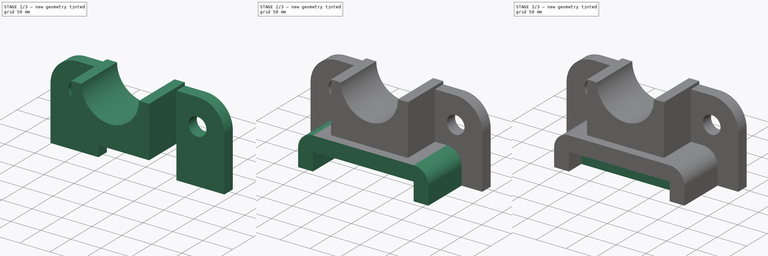
[diagram: build sequence overview — one tinted view per stage of 3, left to right]
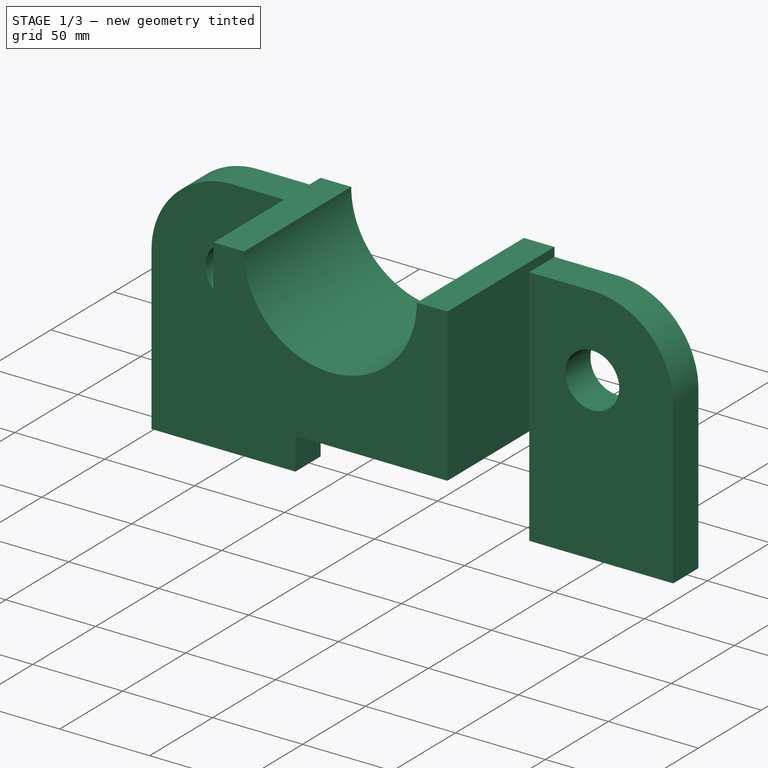
[diagram: stage 1 of 3 — iso view after this stage's code; geometry added in this stage tinted green]
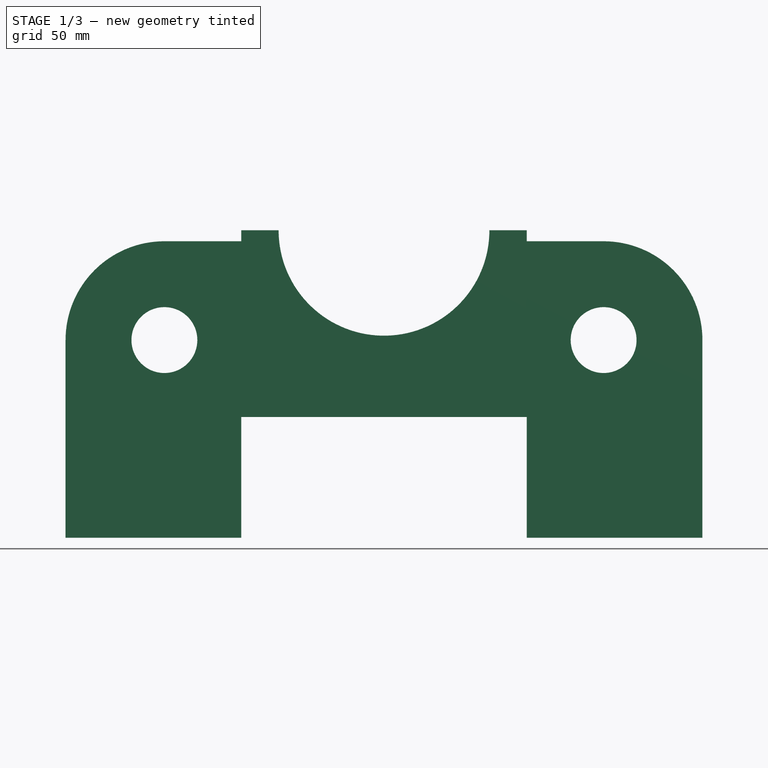
[diagram: stage 1 of 3 — front view after this stage's code; geometry added in this stage tinted green]
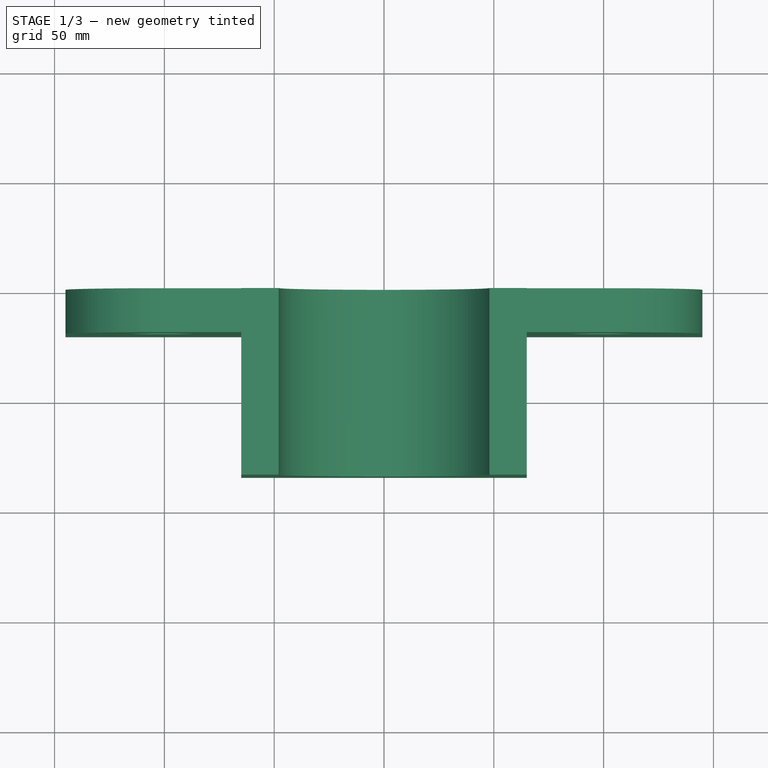
[diagram: stage 1 of 3 — top view after this stage's code; geometry added in this stage tinted green]
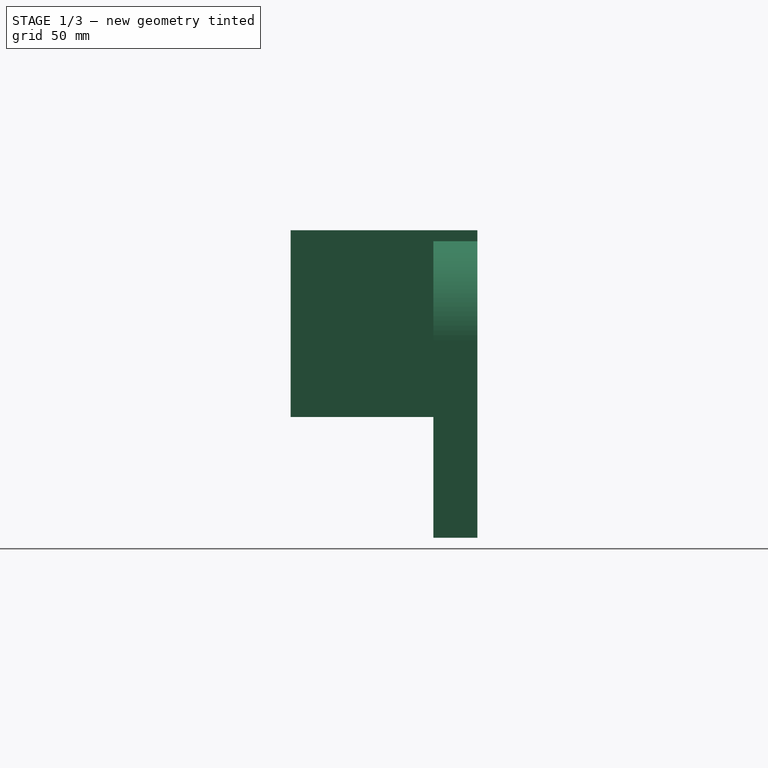
[diagram: stage 1 of 3 — right view after this stage's code; geometry added in this stage tinted green]
FCSTD DOCUMENT  (FreeCAD 0.16R)
Label: Ejer final 18
License: All rights reserved
LicenseURL: http://en.wikipedia.org/wiki/All_rights_reserved
objects: Sketcher::SketchObject×4, PartDesign::Pad×4, Part::MultiFuse×1
note: 13 computed .brp shape members not serialized (recipe doc carries the construction recipe); baked Part::Feature solids carry a one-line shape summary decoded from their .brp

FEATURE [Sketcher::SketchObject] Sketch002
  Placement = pos=(0,0,0) rot=(-1,0,0;4.71239rad)
  sketch-geometry (6):
    g0: LineSegment StartX=-48 StartY=140 StartZ=0 EndX=-65 EndY=140 EndZ=0
    g1: LineSegment StartX=-65 StartY=140 StartZ=0 EndX=-65 EndY=55 EndZ=0
    g2: LineSegment StartX=-65 StartY=55 StartZ=0 EndX=65 EndY=55 EndZ=0
    g3: LineSegment StartX=65 StartY=55 StartZ=0 EndX=65 EndY=140 EndZ=0
    g4: LineSegment StartX=65 StartY=140 StartZ=0 EndX=48 EndY=140 EndZ=0
    g5: ArcOfCircle CenterX=0 CenterY=140 CenterZ=0 NormalX=0 NormalY=0 NormalZ=1 Radius=48 StartAngle=3.14159 EndAngle=6.28319
  constraints (19):
    c: Horizontal(g0)
    c: Coincident(g0,g1)
    c: Vertical(g1)
    c: Coincident(g1,g2)
    c: Horizontal(g2)
    c: Coincident(g2,g3)
    c: Vertical(g3)
    c: Coincident(g3,g4)
    c: DistanceX(g2,g2) = 130
    c: DistanceY(g3,g3) = 85
    c: DistanceY(g1,g1) = 85
    c: DistanceY(g-1,g2) = 55
    c: Symmetric(g1,g2,g-2)
    c: PointOnObject(g5,g-2)
    c: Coincident(g5,g4)
    c: DistanceY(g-1,g5) = 140
    c: Coincident(g5,g0)
    c: Horizontal(g4)
    c: DistanceX(g0,g0) = 17
FEATURE [PartDesign::Pad] Pad002
  Length = 85
  Length2 = 100
  Placement = pos=(0,0,0) rot=(-1,0,0;4.71239rad)
  Sketch = -> Sketch002
  Type = 0
FEATURE [Sketcher::SketchObject] Sketch003
  Placement = pos=(0,0,0) rot=(-1,0,0;4.71239rad)
  sketch-geometry (12):
    g0: LineSegment StartX=65 StartY=0 StartZ=0 EndX=145 EndY=0 EndZ=0
    g1: LineSegment StartX=145 StartY=0 StartZ=0 EndX=145 EndY=90 EndZ=0
    g2: LineSegment StartX=100 StartY=135 StartZ=0 EndX=65 EndY=135 EndZ=0
    g3: LineSegment StartX=65 StartY=135 StartZ=0 EndX=65 EndY=0 EndZ=0
    g4: LineSegment StartX=-65 StartY=0 StartZ=0 EndX=-145 EndY=0 EndZ=0
    g5: LineSegment StartX=-145 StartY=0 StartZ=0 EndX=-145 EndY=90 EndZ=0
    g6: LineSegment StartX=-100 StartY=135 StartZ=0 EndX=-65 EndY=135 EndZ=0
    g7: LineSegment StartX=-65 StartY=135 StartZ=0 EndX=-65 EndY=0 EndZ=0
    g8: ArcOfCircle CenterX=-100 CenterY=90 CenterZ=0 NormalX=0 NormalY=0 NormalZ=1 Radius=45 StartAngle=1.5708 EndAngle=3.14159
    g9: ArcOfCircle CenterX=100 CenterY=90 CenterZ=0 NormalX=0 NormalY=0 NormalZ=1 Radius=45 StartAngle=0 EndAngle=1.5708
    g10: Circle CenterX=-100 CenterY=90 CenterZ=0 NormalX=0 NormalY=0 NormalZ=1 Radius=15
    g11: Circle CenterX=100 CenterY=90 CenterZ=0 NormalX=0 NormalY=0 NormalZ=1 Radius=15
  constraints (32):
    c: Coincident(g0,g1)
    c: Coincident(g2,g3)
    c: Coincident(g3,g0)
    c: Horizontal(g0)
    c: Horizontal(g2)
    c: Vertical(g1)
    c: Vertical(g3)
    c: PointOnObject(g0,g-1)
    c: Coincident(g4,g5)
    c: Coincident(g6,g7)
    c: Coincident(g7,g4)
    c: Horizontal(g4)
    c: Horizontal(g6)
    c: Vertical(g5)
    c: Vertical(g7)
    c: PointOnObject(g4,g-1)
    c: DistanceX(g4,g-1) = 65
    c: DistanceX(g-1,g0) = 65
    c: DistanceX(g4,g0) = 290
    c: Tangent(g6,g8) = 1.5708
    c: Tangent(g5,g8) = 1.5708
    c: Tangent(g2,g9) = -1.5708
    c: Tangent(g1,g9) = -1.5708
    c: DistanceY(g0,g2) = 135
    c: DistanceY(g4,g6) = 135
    c: DistanceX(g5,g6) = 80
    c: Radius(g9) = 45
    c: Radius(g8) = 45
    c: Coincident(g10,g8)
    c: Coincident(g11,g9)
    c: Radius(g10) = 15
    c: Radius(g11) = 15
FEATURE [PartDesign::Pad] Pad003
  Length = 20
  Length2 = 100
  Placement = pos=(0,0,0) rot=(-1,0,0;4.71239rad)
  Sketch = -> Sketch003
  Type = 0
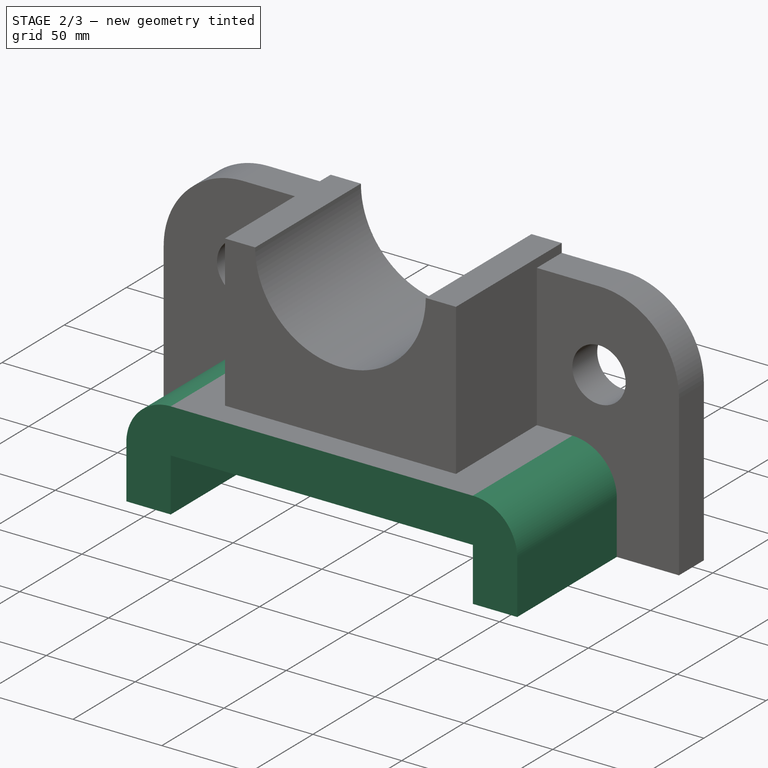
[diagram: stage 2 of 3 — iso view after this stage's code; geometry added in this stage tinted green]
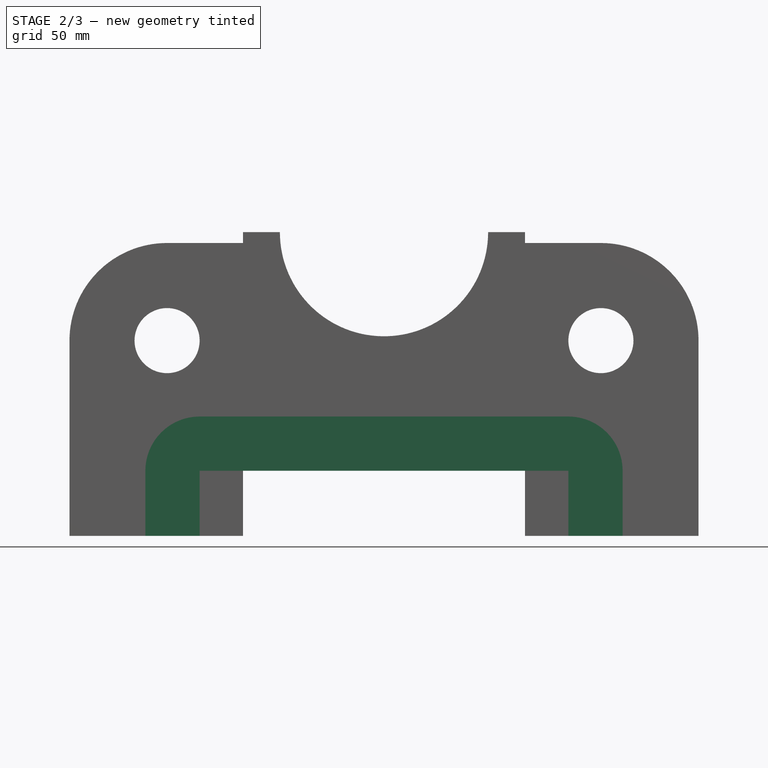
[diagram: stage 2 of 3 — front view after this stage's code; geometry added in this stage tinted green]
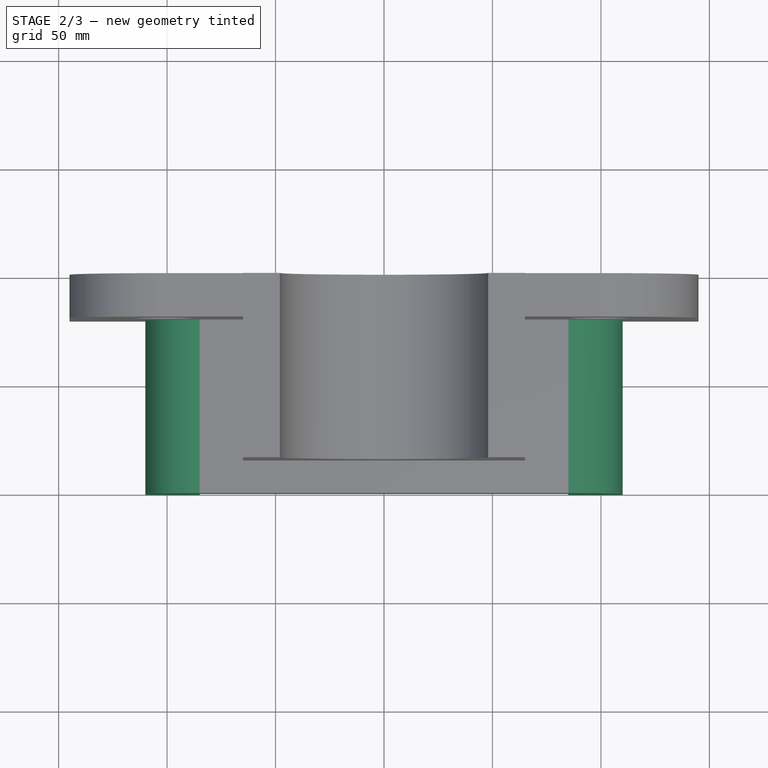
[diagram: stage 2 of 3 — top view after this stage's code; geometry added in this stage tinted green]
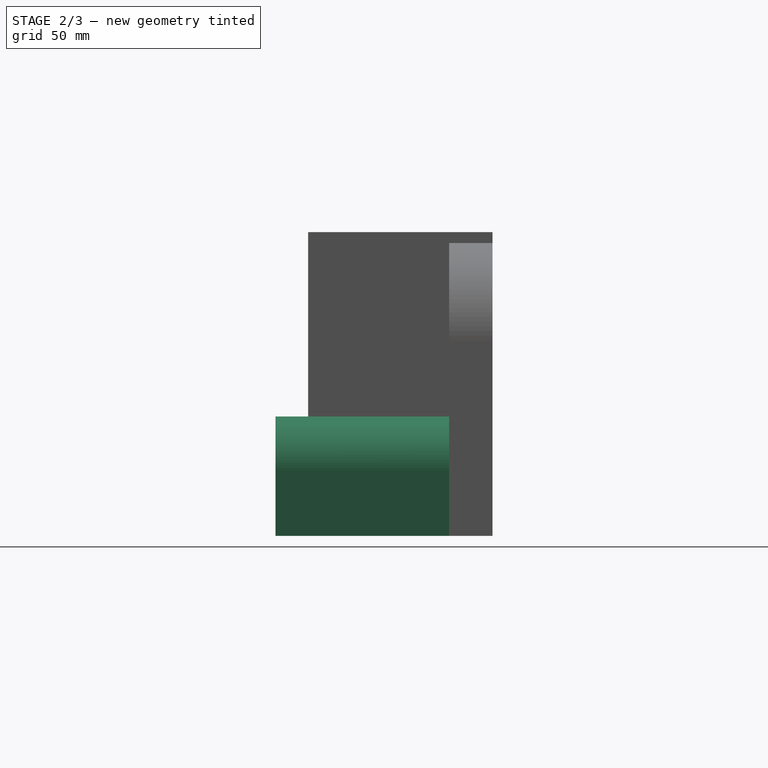
[diagram: stage 2 of 3 — right view after this stage's code; geometry added in this stage tinted green]
FEATURE [Sketcher::SketchObject] Sketch001
  Placement = pos=(0,0,0) rot=(-1,0,0;4.71239rad)
  sketch-geometry (10):
    g0: LineSegment StartX=-85 StartY=0 StartZ=0 EndX=-85 EndY=30 EndZ=0
    g1: LineSegment StartX=-85 StartY=30 StartZ=0 EndX=85 EndY=30 EndZ=0
    g2: LineSegment StartX=85 StartY=30 StartZ=0 EndX=85 EndY=0 EndZ=0
    g3: LineSegment StartX=85 StartY=0 StartZ=0 EndX=110 EndY=0 EndZ=0
    g4: LineSegment StartX=110 StartY=0 StartZ=0 EndX=110 EndY=30 EndZ=0
    g5: LineSegment StartX=85 StartY=55 StartZ=0 EndX=-85 EndY=55 EndZ=0
    g6: LineSegment StartX=-110 StartY=30 StartZ=0 EndX=-110 EndY=0 EndZ=0
    g7: LineSegment StartX=-110 StartY=0 StartZ=0 EndX=-85 EndY=0 EndZ=0
    g8: ArcOfCircle CenterX=-85 CenterY=30 CenterZ=0 NormalX=0 NormalY=0 NormalZ=1 Radius=25 StartAngle=1.5708 EndAngle=3.14159
    g9: ArcOfCircle CenterX=85 CenterY=30 CenterZ=0 NormalX=0 NormalY=0 NormalZ=1 Radius=25 StartAngle=0 EndAngle=1.5708
  constraints (28):
    c: Vertical(g0)
    c: Coincident(g0,g1)
    c: Horizontal(g1)
    c: Coincident(g1,g2)
    c: Vertical(g2)
    c: Coincident(g2,g3)
    c: Horizontal(g3)
    c: Coincident(g3,g4)
    c: Vertical(g4)
    c: Horizontal(g5)
    c: Vertical(g6)
    c: Coincident(g6,g7)
    c: Coincident(g7,g0)
    c: Horizontal(g7)
    c: Symmetric(g0,g1,g-2)
    c: DistanceX(g1,g1) = 170
    c: DistanceY(g2,g2) = 30
    c: PointOnObject(g2,g-1)
    c: DistanceX(g7,g7) = 25
    c: DistanceX(g3,g3) = 25
    c: PointOnObject(g6,g-1)
    c: Tangent(g5,g8) = -1.5708
    c: Tangent(g6,g8) = -1.5708
    c: Tangent(g5,g9) = -1.5708
    c: Tangent(g4,g9) = -1.5708
    c: Radius(g8) = 25
    c: Radius(g9) = 25
    c: DistanceY(g-1,g5) = 55
FEATURE [PartDesign::Pad] Pad001
  Length = 100
  Length2 = 100
  Placement = pos=(0,0,0) rot=(-1,0,0;4.71239rad)
  Sketch = -> Sketch001
  Type = 0
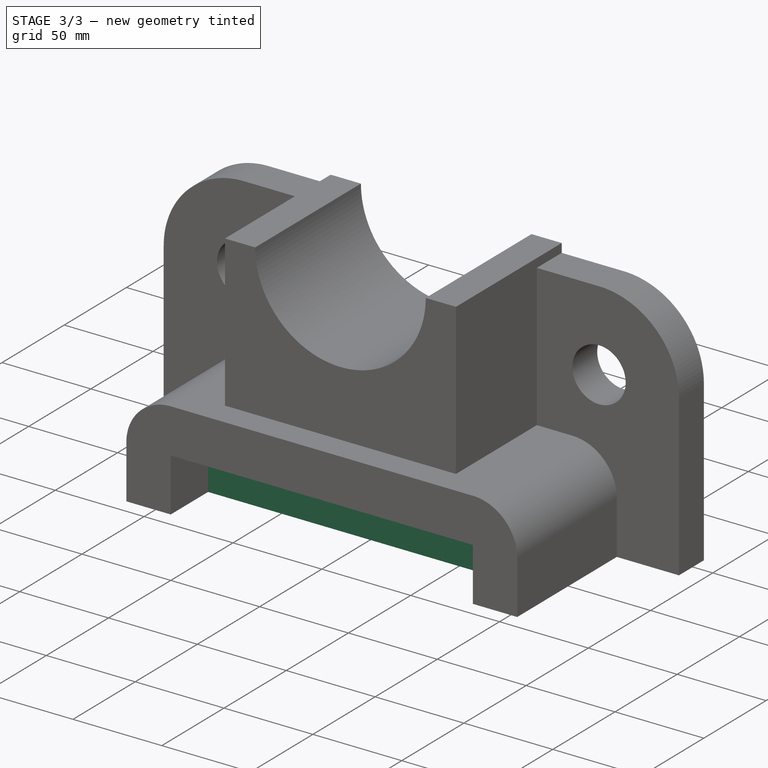
[diagram: stage 3 of 3 — iso view after this stage's code; geometry added in this stage tinted green]
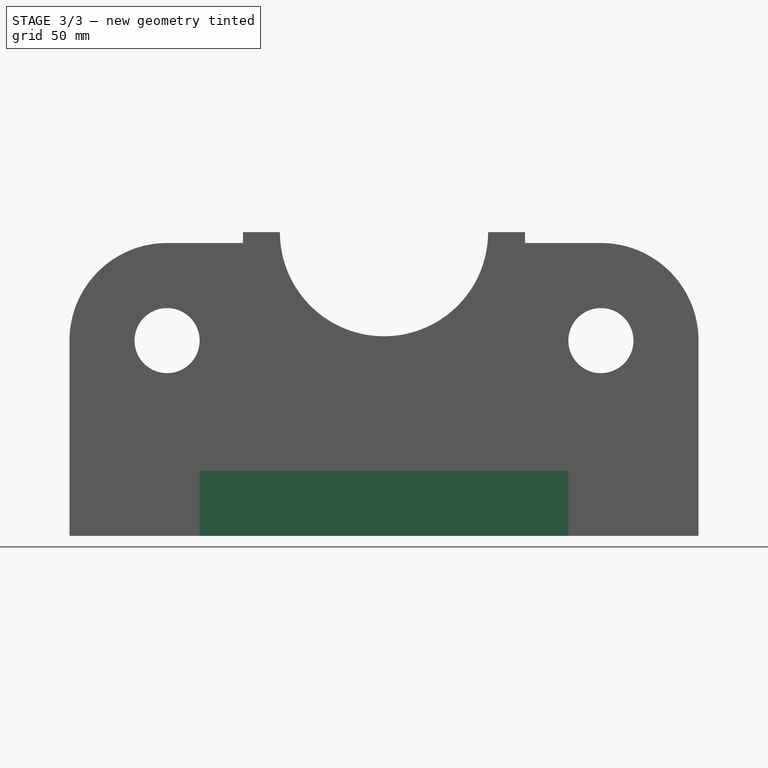
[diagram: stage 3 of 3 — front view after this stage's code; geometry added in this stage tinted green]
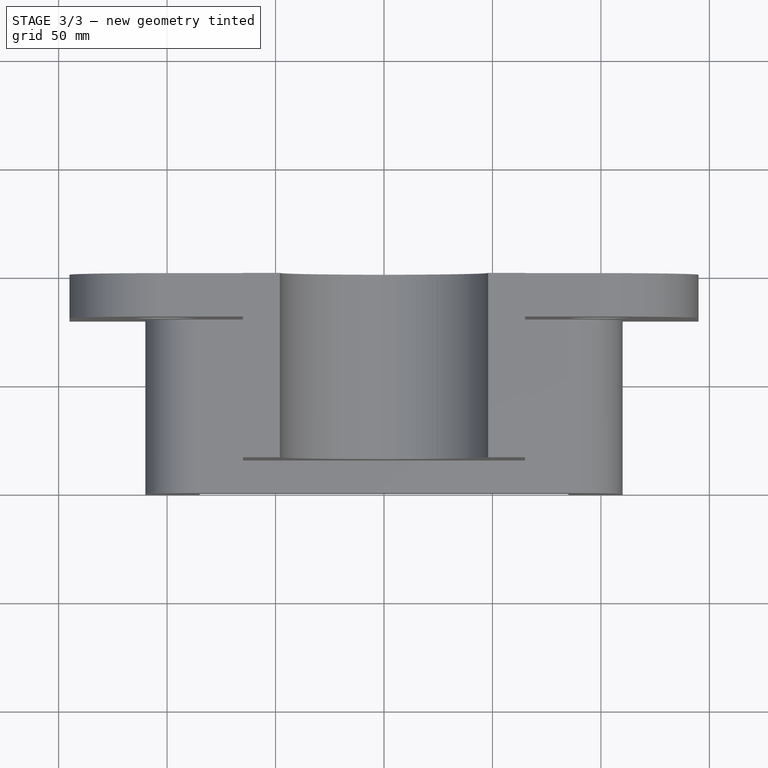
[diagram: stage 3 of 3 — top view after this stage's code; geometry added in this stage tinted green]
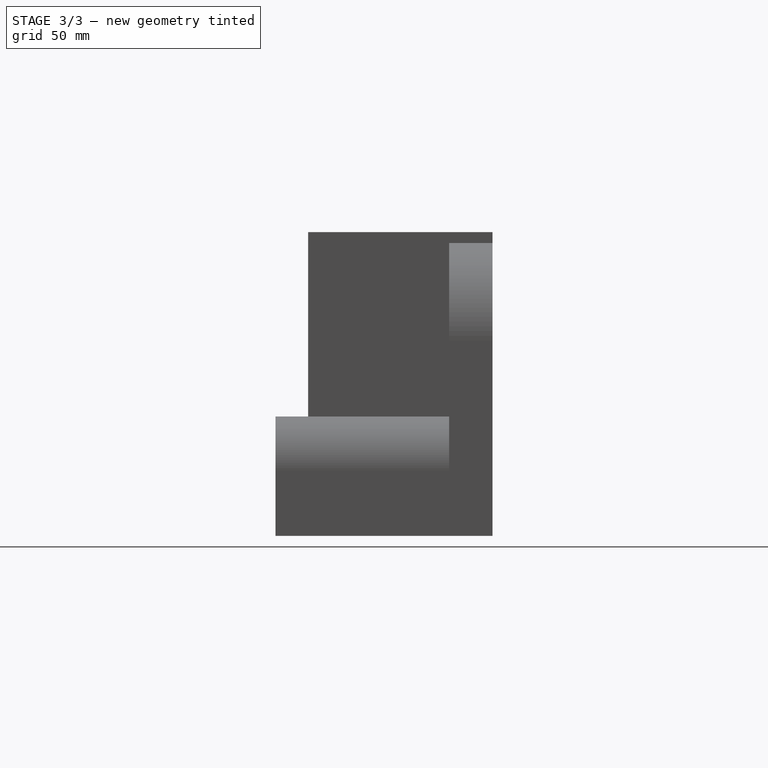
[diagram: stage 3 of 3 — right view after this stage's code; geometry added in this stage tinted green]
FEATURE [Sketcher::SketchObject] Sketch
  Placement = pos=(0,0,0) rot=(-1,0,0;4.71239rad)
  sketch-geometry (4):
    g0: LineSegment StartX=-85 StartY=0 StartZ=0 EndX=85 EndY=0 EndZ=0
    g1: LineSegment StartX=85 StartY=0 StartZ=0 EndX=85 EndY=30 EndZ=0
    g2: LineSegment StartX=85 StartY=30 StartZ=0 EndX=-85 EndY=30 EndZ=0
    g3: LineSegment StartX=-85 StartY=30 StartZ=0 EndX=-85 EndY=0 EndZ=0
  constraints (12):
    c: Coincident(g0,g1)
    c: Coincident(g1,g2)
    c: Coincident(g2,g3)
    c: Coincident(g3,g0)
    c: Horizontal(g0)
    c: Horizontal(g2)
    c: Vertical(g1)
    c: Vertical(g3)
    c: PointOnObject(g0,g-1)
    c: DistanceX(g0,g0) = 170
    c: Symmetric(g0,g0,g-2)
    c: DistanceY(g1,g1) = 30
FEATURE [PartDesign::Pad] Pad
  Length = 70
  Length2 = 100
  Placement = pos=(0,0,0) rot=(-1,0,0;4.71239rad)
  Sketch = -> Sketch
  Type = 0
FEATURE [Part::MultiFuse] Fusion
  Shapes = -> [Pad003,Pad002,Pad001,Pad]
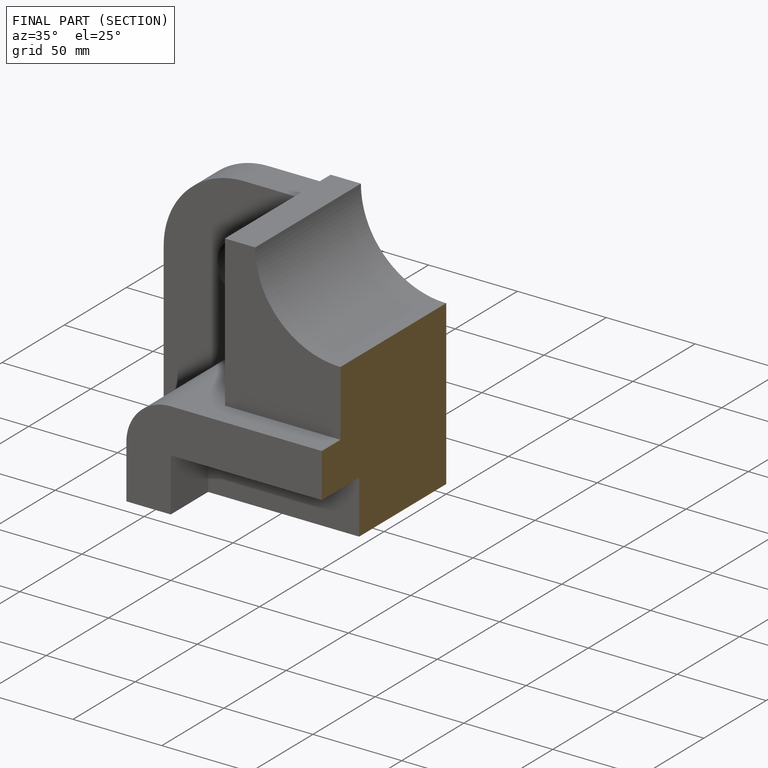
[diagram: finished part — half-section view (interior)]
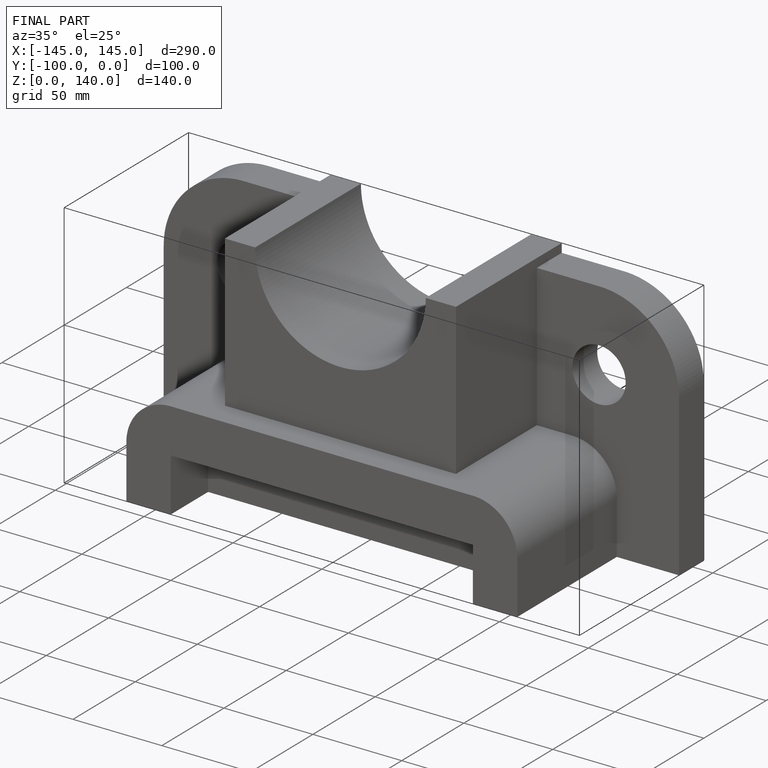
[diagram: finished part — iso view with bounding-box wireframe]
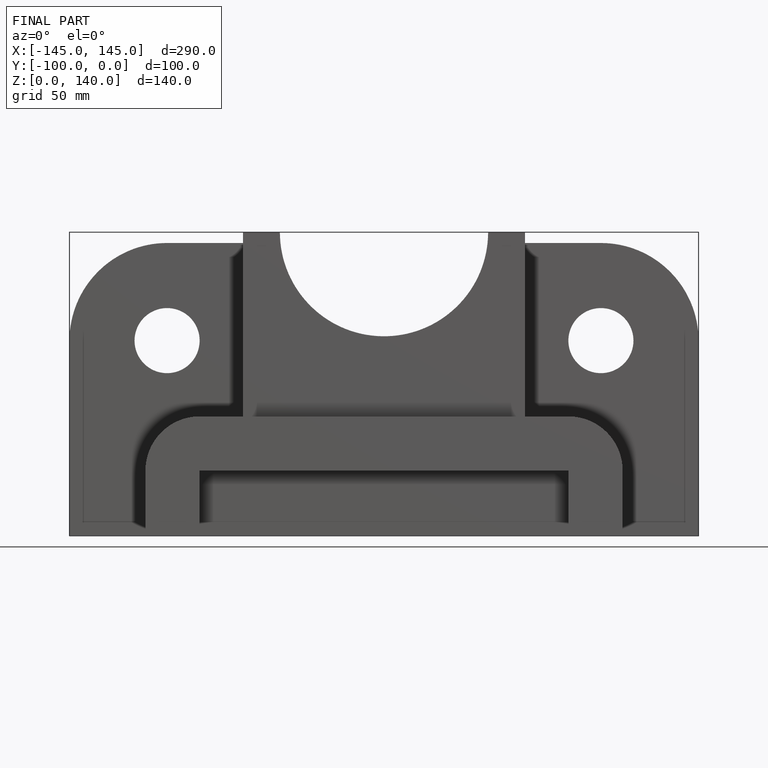
[diagram: finished part — front view with bounding-box wireframe]
